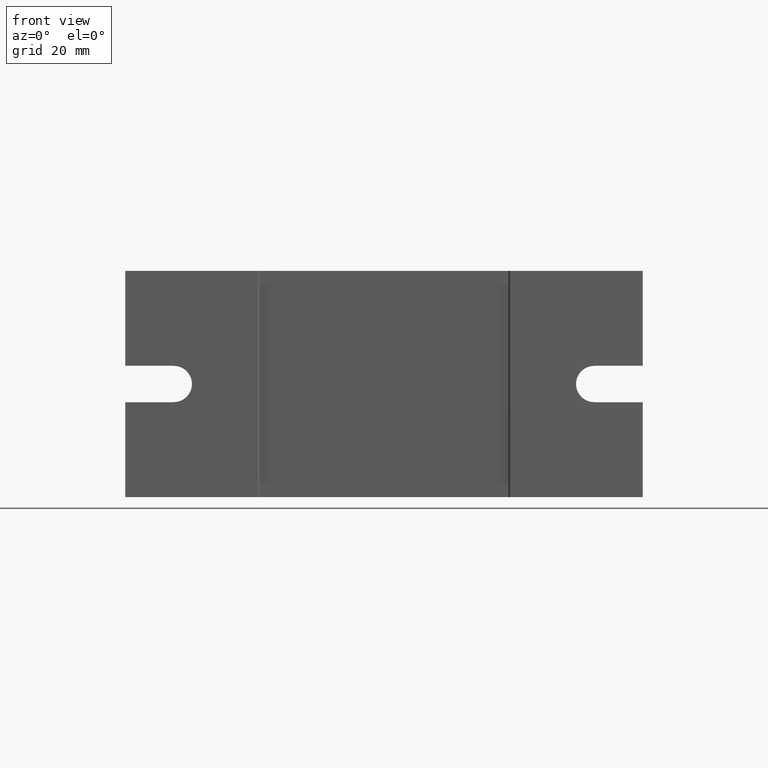
[diagram: clean part render]
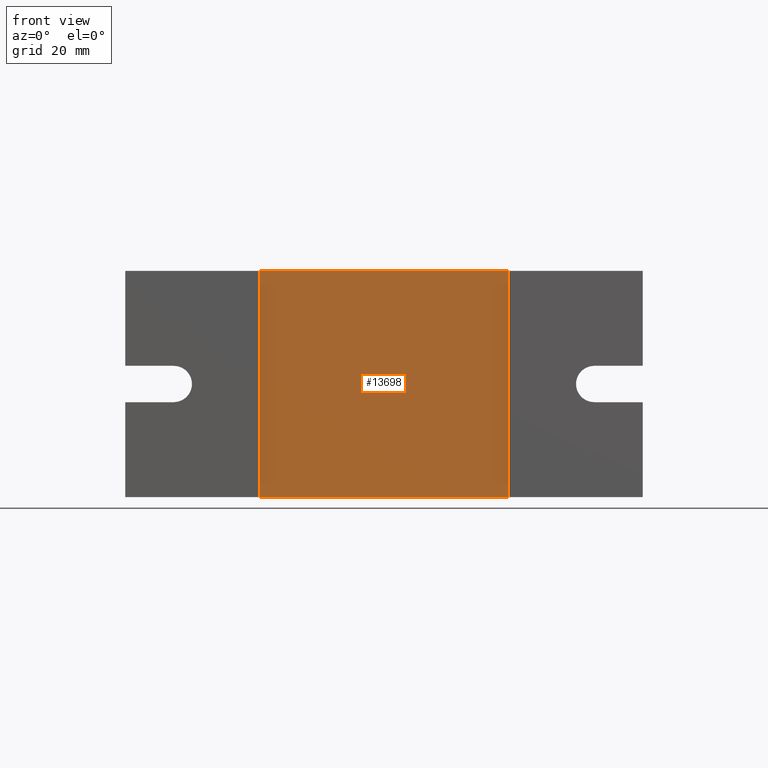
[diagram: same view with one face highlighted and labeled with its STEP entity id]
A machine part, front view. The second image highlights one B-rep face of the part: STEP entity #13698.
In plain terms, the highlighted planar face has unit normal (-0, 1, 0).
Its self-contained STEP definition (entity closure, byte-faithful):
#185 = EDGE_CURVE ( 'NONE', #256, #21622, #20491, .T. ) ;
#256 = VERTEX_POINT ( 'NONE', #12230 ) ;
#574 = DIRECTION ( 'NONE',  ( -1.000000000000000000, -1.110223024625155900E-016, 0.0000000000000000000 ) ) ;
#2295 = VECTOR ( 'NONE', #10102, 1000.000000000000000 ) ;
#3460 = CARTESIAN_POINT ( 'NONE',  ( 30.75000000000000000, -39.50000000000000000, -28.00000000000000000 ) ) ;
#5422 = ORIENTED_EDGE ( 'NONE', *, *, #15505, .T. ) ;
#6909 = EDGE_CURVE ( 'NONE', #20308, #21622, #9529, .T. ) ;
#6923 = CARTESIAN_POINT ( 'NONE',  ( -30.75000000000000000, -39.50000000000000000, -28.00000000000000000 ) ) ;
#7290 = LINE ( 'NONE', #21689, #2295 ) ;
#7315 = CARTESIAN_POINT ( 'NONE',  ( -31.25000000000000000, -39.50000000000000000, -28.00000000000000000 ) ) ;
#7410 = CARTESIAN_POINT ( 'NONE',  ( -30.75000000000000000, -39.50000000000000000, -28.00000000000000000 ) ) ;
#8110 = LINE ( 'NONE', #19908, #15974 ) ;
#8507 = EDGE_LOOP ( 'NONE', ( #15875, #8704, #5422, #20833 ) ) ;
#8704 = ORIENTED_EDGE ( 'NONE', *, *, #19220, .T. ) ;
#9529 = LINE ( 'NONE', #7315, #16090 ) ;
#10102 = DIRECTION ( 'NONE',  ( -1.000000000000000000, -1.110223024625155900E-016, 0.0000000000000000000 ) ) ;
#12230 = CARTESIAN_POINT ( 'NONE',  ( -30.75000000000000000, -39.50000000000000000, 28.00000000000000000 ) ) ;
#12656 = PLANE ( 'NONE',  #18799 ) ;
#13207 = VERTEX_POINT ( 'NONE', #20876 ) ;
#13698 = ADVANCED_FACE ( 'NONE', ( #18054 ), #12656, .F. ) ;
#13830 = DIRECTION ( 'NONE',  ( 0.0000000000000000000, 0.0000000000000000000, -1.000000000000000000 ) ) ;
#14408 = DIRECTION ( 'NONE',  ( -1.000000000000000000, -1.110223024625155900E-016, 0.0000000000000000000 ) ) ;
#15505 = EDGE_CURVE ( 'NONE', #13207, #256, #7290, .T. ) ;
#15875 = ORIENTED_EDGE ( 'NONE', *, *, #6909, .F. ) ;
#15974 = VECTOR ( 'NONE', #19782, 1000.000000000000000 ) ;
#16090 = VECTOR ( 'NONE', #574, 1000.000000000000000 ) ;
#17669 = DIRECTION ( 'NONE',  ( -1.110223024625155900E-016, 1.000000000000000000, 0.0000000000000000000 ) ) ;
#17892 = CARTESIAN_POINT ( 'NONE',  ( -31.25000000000000000, -39.50000000000000000, -28.00000000000000000 ) ) ;
#18054 = FACE_OUTER_BOUND ( 'NONE', #8507, .T. ) ;
#18799 = AXIS2_PLACEMENT_3D ( 'NONE', #17892, #17669, #14408 ) ;
#19220 = EDGE_CURVE ( 'NONE', #20308, #13207, #8110, .T. ) ;
#19782 = DIRECTION ( 'NONE',  ( 0.0000000000000000000, 0.0000000000000000000, 1.000000000000000000 ) ) ;
#19908 = CARTESIAN_POINT ( 'NONE',  ( 30.75000000000000000, -39.50000000000000000, 28.00000000000000000 ) ) ;
#20308 = VERTEX_POINT ( 'NONE', #3460 ) ;
#20491 = LINE ( 'NONE', #7410, #21828 ) ;
#20833 = ORIENTED_EDGE ( 'NONE', *, *, #185, .T. ) ;
#20876 = CARTESIAN_POINT ( 'NONE',  ( 30.75000000000000000, -39.50000000000000000, 28.00000000000000000 ) ) ;
#21622 = VERTEX_POINT ( 'NONE', #6923 ) ;
#21689 = CARTESIAN_POINT ( 'NONE',  ( -31.25000000000000000, -39.50000000000000000, 28.00000000000000000 ) ) ;
#21828 = VECTOR ( 'NONE', #13830, 1000.000000000000000 ) ;